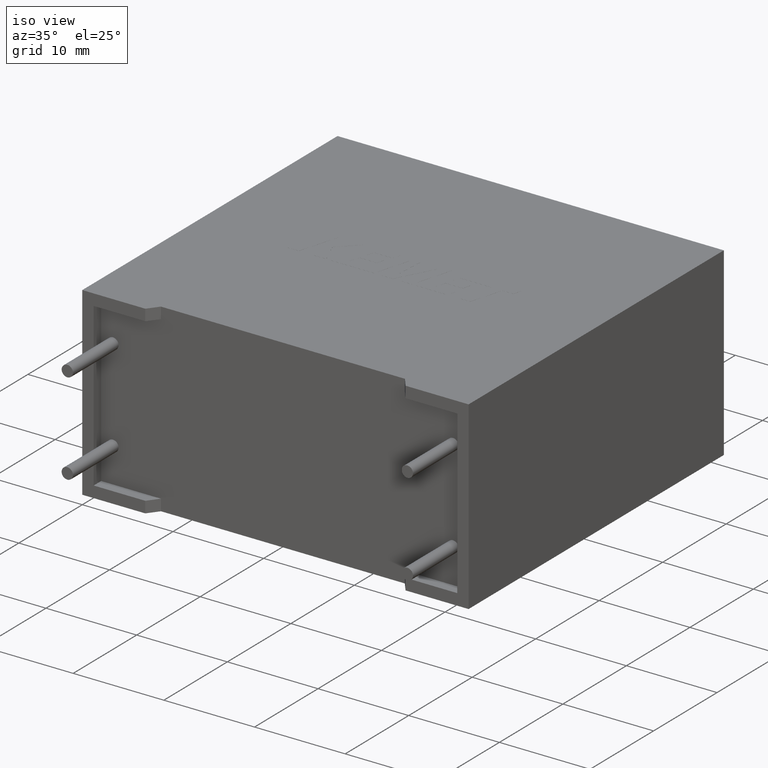
[diagram: clean part render]
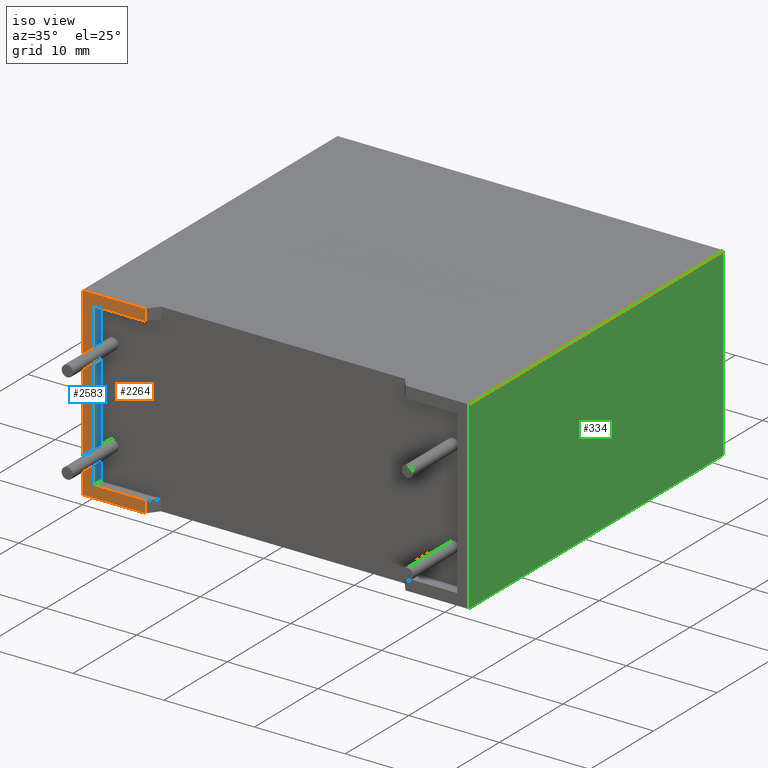
[diagram: same view with three faces highlighted in distinct colors, each labeled with its STEP entity id]
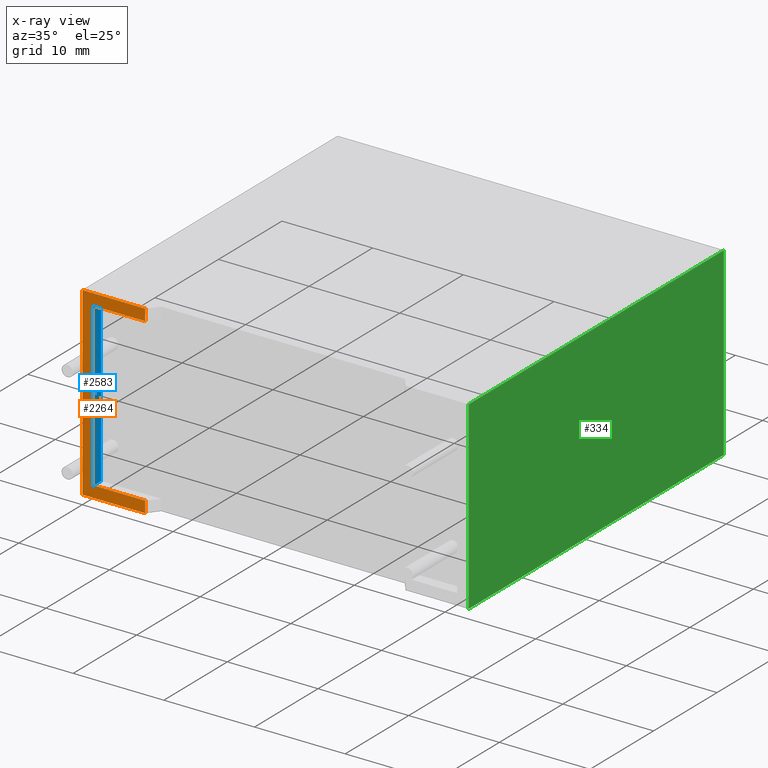
[diagram: x-ray of the same camera — body ghosted, the three highlighted faces saturated]
A machine part, iso view with three faces highlighted in distinct colors.
The next image is the same camera in x-ray (body ghosted, the three faces saturated) — at least one of them is partly hidden behind the body in this view.
Their STEP definitions:

[orange] entity #2264 — the highlighted planar face has unit normal (0, 1, 0).
#33 = EDGE_CURVE ( 'NONE', #2393, #2819, #1967, .T. ) ;
#191 = CARTESIAN_POINT ( 'NONE',  ( 0.0000000000000000000, 0.0000000000000000000, 0.0000000000000000000 ) ) ;
#293 = ORIENTED_EDGE ( 'NONE', *, *, #483, .F. ) ;
#335 = CARTESIAN_POINT ( 'NONE',  ( 0.0000000000000000000, 0.0000000000000000000, 0.0000000000000000000 ) ) ;
#458 = DIRECTION ( 'NONE',  ( -0.0000000000000000000, -0.0000000000000000000, 1.000000000000000000 ) ) ;
#483 = EDGE_CURVE ( 'NONE', #1840, #607, #1961, .T. ) ;
#500 = VERTEX_POINT ( 'NONE', #3143 ) ;
#607 = VERTEX_POINT ( 'NONE', #754 ) ;
#615 = VECTOR ( 'NONE', #458, 1000.000000000000000 ) ;
#654 = DIRECTION ( 'NONE',  ( 1.000000000000000000, 0.0000000000000000000, 0.0000000000000000000 ) ) ;
#663 = AXIS2_PLACEMENT_3D ( 'NONE', #816, #1818, #3021 ) ;
#684 = ORIENTED_EDGE ( 'NONE', *, *, #1293, .F. ) ;
#687 = ORIENTED_EDGE ( 'NONE', *, *, #2999, .T. ) ;
#754 = CARTESIAN_POINT ( 'NONE',  ( 6.950000000000000200, 1.702259050814820900E-015, 1.253987999999999900 ) ) ;
#801 = EDGE_CURVE ( 'NONE', #1222, #2671, #1529, .T. ) ;
#816 = CARTESIAN_POINT ( 'NONE',  ( 0.0000000000000000000, 0.0000000000000000000, 20.39999999999999900 ) ) ;
#867 = VECTOR ( 'NONE', #1332, 1000.000000000000000 ) ;
#932 = FACE_OUTER_BOUND ( 'NONE', #1260, .T. ) ;
#999 = EDGE_CURVE ( 'NONE', #2393, #2671, #3028, .T. ) ;
#1112 = VERTEX_POINT ( 'NONE', #1895 ) ;
#1216 = DIRECTION ( 'NONE',  ( 1.000000000000000000, 0.0000000000000000000, 0.0000000000000000000 ) ) ;
#1222 = VERTEX_POINT ( 'NONE', #2597 ) ;
#1227 = ORIENTED_EDGE ( 'NONE', *, *, #999, .F. ) ;
#1250 = CARTESIAN_POINT ( 'NONE',  ( 6.950000000000000200, 1.702259050814820900E-015, 0.0000000000000000000 ) ) ;
#1260 = EDGE_LOOP ( 'NONE', ( #687, #2112, #293, #684, #2968, #2503, #1227, #2776 ) ) ;
#1263 = DIRECTION ( 'NONE',  ( -0.0000000000000000000, -0.0000000000000000000, -1.000000000000000000 ) ) ;
#1264 = CARTESIAN_POINT ( 'NONE',  ( 41.34601200000000200, 0.0000000000000000000, 19.14601199999999500 ) ) ;
#1274 = LINE ( 'NONE', #2399, #615 ) ;
#1291 = VECTOR ( 'NONE', #1263, 1000.000000000000000 ) ;
#1293 = EDGE_CURVE ( 'NONE', #500, #1840, #1825, .T. ) ;
#1330 = PLANE ( 'NONE',  #663 ) ;
#1332 = DIRECTION ( 'NONE',  ( -0.0000000000000000000, -0.0000000000000000000, 1.000000000000000000 ) ) ;
#1444 = CARTESIAN_POINT ( 'NONE',  ( 1.253987999999999900, 0.0000000000000000000, 19.14601199999999500 ) ) ;
#1508 = CARTESIAN_POINT ( 'NONE',  ( 0.0000000000000000000, 0.0000000000000000000, 20.39999999999999900 ) ) ;
#1529 = LINE ( 'NONE', #1250, #867 ) ;
#1585 = VECTOR ( 'NONE', #654, 1000.000000000000000 ) ;
#1675 = CARTESIAN_POINT ( 'NONE',  ( 1.253987999999999900, 0.0000000000000000000, 1.253987999999999900 ) ) ;
#1759 = VECTOR ( 'NONE', #1986, 1000.000000000000000 ) ;
#1818 = DIRECTION ( 'NONE',  ( 0.0000000000000000000, 1.000000000000000000, 0.0000000000000000000 ) ) ;
#1825 = LINE ( 'NONE', #1444, #2731 ) ;
#1832 = CARTESIAN_POINT ( 'NONE',  ( 0.0000000000000000000, 0.0000000000000000000, 20.39999999999999900 ) ) ;
#1840 = VERTEX_POINT ( 'NONE', #1675 ) ;
#1895 = CARTESIAN_POINT ( 'NONE',  ( 6.950000000000000200, 1.702259050814820900E-015, 0.0000000000000000000 ) ) ;
#1950 = CARTESIAN_POINT ( 'NONE',  ( 6.950000000000000200, 1.702259050814820900E-015, 20.39999999999999900 ) ) ;
#1961 = LINE ( 'NONE', #2882, #3031 ) ;
#1967 = LINE ( 'NONE', #1508, #1291 ) ;
#1986 = DIRECTION ( 'NONE',  ( -1.000000000000000000, 0.0000000000000000000, 0.0000000000000000000 ) ) ;
#2059 = LINE ( 'NONE', #191, #1585 ) ;
#2112 = ORIENTED_EDGE ( 'NONE', *, *, #2508, .T. ) ;
#2164 = DIRECTION ( 'NONE',  ( 0.0000000000000000000, 0.0000000000000000000, -1.000000000000000000 ) ) ;
#2264 = ADVANCED_FACE ( 'NONE', ( #932 ), #1330, .F. ) ;
#2300 = VECTOR ( 'NONE', #2579, 1000.000000000000000 ) ;
#2393 = VERTEX_POINT ( 'NONE', #2552 ) ;
#2399 = CARTESIAN_POINT ( 'NONE',  ( 6.950000000000000200, 1.702259050814820900E-015, 0.0000000000000000000 ) ) ;
#2503 = ORIENTED_EDGE ( 'NONE', *, *, #801, .T. ) ;
#2508 = EDGE_CURVE ( 'NONE', #1112, #607, #1274, .T. ) ;
#2552 = CARTESIAN_POINT ( 'NONE',  ( 0.0000000000000000000, 0.0000000000000000000, 20.39999999999999900 ) ) ;
#2579 = DIRECTION ( 'NONE',  ( 1.000000000000000000, 0.0000000000000000000, 0.0000000000000000000 ) ) ;
#2597 = CARTESIAN_POINT ( 'NONE',  ( 6.950000000000000200, 1.702259050814820900E-015, 19.14601199999999500 ) ) ;
#2671 = VERTEX_POINT ( 'NONE', #1950 ) ;
#2689 = EDGE_CURVE ( 'NONE', #1222, #500, #3055, .T. ) ;
#2731 = VECTOR ( 'NONE', #2164, 1000.000000000000000 ) ;
#2776 = ORIENTED_EDGE ( 'NONE', *, *, #33, .T. ) ;
#2819 = VERTEX_POINT ( 'NONE', #335 ) ;
#2882 = CARTESIAN_POINT ( 'NONE',  ( 1.253987999999999900, 0.0000000000000000000, 1.253987999999999900 ) ) ;
#2968 = ORIENTED_EDGE ( 'NONE', *, *, #2689, .F. ) ;
#2999 = EDGE_CURVE ( 'NONE', #2819, #1112, #2059, .T. ) ;
#3021 = DIRECTION ( 'NONE',  ( 0.0000000000000000000, -0.0000000000000000000, 1.000000000000000000 ) ) ;
#3028 = LINE ( 'NONE', #1832, #2300 ) ;
#3031 = VECTOR ( 'NONE', #1216, 1000.000000000000000 ) ;
#3055 = LINE ( 'NONE', #1264, #1759 ) ;
#3143 = CARTESIAN_POINT ( 'NONE',  ( 1.253987999999999900, 0.0000000000000000000, 19.14601199999999500 ) ) ;

[blue] entity #2583 — the highlighted planar face has unit normal (-1, 0, 0).
#29 = CARTESIAN_POINT ( 'NONE',  ( 1.253987999999999900, 1.181880000000000000, 19.14601199999999500 ) ) ;
#262 = CARTESIAN_POINT ( 'NONE',  ( 1.253987999999999900, 1.181880000000000000, 19.14601199999999500 ) ) ;
#423 = LINE ( 'NONE', #819, #2576 ) ;
#479 = DIRECTION ( 'NONE',  ( -1.000000000000000000, 0.0000000000000000000, 0.0000000000000000000 ) ) ;
#500 = VERTEX_POINT ( 'NONE', #3143 ) ;
#787 = EDGE_CURVE ( 'NONE', #2974, #500, #423, .T. ) ;
#819 = CARTESIAN_POINT ( 'NONE',  ( 1.253987999999999900, 1.181880000000000000, 19.14601199999999500 ) ) ;
#983 = EDGE_CURVE ( 'NONE', #2348, #1840, #2793, .T. ) ;
#1065 = ORIENTED_EDGE ( 'NONE', *, *, #983, .F. ) ;
#1293 = EDGE_CURVE ( 'NONE', #500, #1840, #1825, .T. ) ;
#1356 = CARTESIAN_POINT ( 'NONE',  ( 1.253987999999999900, 1.181880000000000000, 1.253987999999999900 ) ) ;
#1444 = CARTESIAN_POINT ( 'NONE',  ( 1.253987999999999900, 0.0000000000000000000, 19.14601199999999500 ) ) ;
#1467 = EDGE_CURVE ( 'NONE', #2974, #2348, #1998, .T. ) ;
#1615 = ORIENTED_EDGE ( 'NONE', *, *, #787, .T. ) ;
#1633 = CARTESIAN_POINT ( 'NONE',  ( 1.253987999999999900, 1.181880000000000000, 19.14601199999999500 ) ) ;
#1675 = CARTESIAN_POINT ( 'NONE',  ( 1.253987999999999900, 0.0000000000000000000, 1.253987999999999900 ) ) ;
#1716 = PLANE ( 'NONE',  #2347 ) ;
#1825 = LINE ( 'NONE', #1444, #2731 ) ;
#1840 = VERTEX_POINT ( 'NONE', #1675 ) ;
#1921 = VECTOR ( 'NONE', #2916, 1000.000000000000000 ) ;
#1998 = LINE ( 'NONE', #262, #1921 ) ;
#2083 = CARTESIAN_POINT ( 'NONE',  ( 1.253987999999999900, 1.181880000000000000, 1.253987999999999900 ) ) ;
#2164 = DIRECTION ( 'NONE',  ( 0.0000000000000000000, 0.0000000000000000000, -1.000000000000000000 ) ) ;
#2187 = DIRECTION ( 'NONE',  ( 0.0000000000000000000, 0.0000000000000000000, 1.000000000000000000 ) ) ;
#2222 = EDGE_LOOP ( 'NONE', ( #3118, #1065, #3040, #1615 ) ) ;
#2252 = FACE_OUTER_BOUND ( 'NONE', #2222, .T. ) ;
#2347 = AXIS2_PLACEMENT_3D ( 'NONE', #29, #479, #2187 ) ;
#2348 = VERTEX_POINT ( 'NONE', #2083 ) ;
#2451 = VECTOR ( 'NONE', #2785, 1000.000000000000000 ) ;
#2509 = DIRECTION ( 'NONE',  ( -0.0000000000000000000, -1.000000000000000000, -0.0000000000000000000 ) ) ;
#2576 = VECTOR ( 'NONE', #2509, 1000.000000000000000 ) ;
#2583 = ADVANCED_FACE ( 'NONE', ( #2252 ), #1716, .F. ) ;
#2731 = VECTOR ( 'NONE', #2164, 1000.000000000000000 ) ;
#2785 = DIRECTION ( 'NONE',  ( -0.0000000000000000000, -1.000000000000000000, -0.0000000000000000000 ) ) ;
#2793 = LINE ( 'NONE', #1356, #2451 ) ;
#2916 = DIRECTION ( 'NONE',  ( 0.0000000000000000000, 0.0000000000000000000, -1.000000000000000000 ) ) ;
#2974 = VERTEX_POINT ( 'NONE', #1633 ) ;
#3040 = ORIENTED_EDGE ( 'NONE', *, *, #1467, .F. ) ;
#3118 = ORIENTED_EDGE ( 'NONE', *, *, #1293, .T. ) ;
#3143 = CARTESIAN_POINT ( 'NONE',  ( 1.253987999999999900, 0.0000000000000000000, 19.14601199999999500 ) ) ;

[green] entity #334 — the highlighted planar face has unit normal (-1, 0, 0).
#30 = VECTOR ( 'NONE', #146, 1000.000000000000000 ) ;
#118 = VERTEX_POINT ( 'NONE', #2262 ) ;
#146 = DIRECTION ( 'NONE',  ( -0.0000000000000000000, -0.0000000000000000000, -1.000000000000000000 ) ) ;
#214 = CARTESIAN_POINT ( 'NONE',  ( 42.60000000000000100, 0.0000000000000000000, 20.39999999999999900 ) ) ;
#317 = VERTEX_POINT ( 'NONE', #364 ) ;
#334 = ADVANCED_FACE ( 'NONE', ( #2166 ), #2094, .F. ) ;
#364 = CARTESIAN_POINT ( 'NONE',  ( 42.60000000000000100, 40.20000000000000300, 0.0000000000000000000 ) ) ;
#553 = CARTESIAN_POINT ( 'NONE',  ( 42.60000000000000100, 0.0000000000000000000, 20.39999999999999900 ) ) ;
#623 = VECTOR ( 'NONE', #1277, 1000.000000000000000 ) ;
#631 = DIRECTION ( 'NONE',  ( -1.000000000000000000, 0.0000000000000000000, 0.0000000000000000000 ) ) ;
#718 = EDGE_CURVE ( 'NONE', #1382, #2586, #2910, .T. ) ;
#794 = CARTESIAN_POINT ( 'NONE',  ( 42.60000000000000100, 0.0000000000000000000, 20.39999999999999900 ) ) ;
#888 = AXIS2_PLACEMENT_3D ( 'NONE', #1647, #631, #1400 ) ;
#911 = DIRECTION ( 'NONE',  ( 0.0000000000000000000, 1.000000000000000000, 0.0000000000000000000 ) ) ;
#1039 = ORIENTED_EDGE ( 'NONE', *, *, #1131, .T. ) ;
#1131 = EDGE_CURVE ( 'NONE', #2586, #317, #1402, .T. ) ;
#1277 = DIRECTION ( 'NONE',  ( 0.0000000000000000000, 1.000000000000000000, 0.0000000000000000000 ) ) ;
#1380 = ORIENTED_EDGE ( 'NONE', *, *, #718, .T. ) ;
#1382 = VERTEX_POINT ( 'NONE', #214 ) ;
#1400 = DIRECTION ( 'NONE',  ( 0.0000000000000000000, 0.0000000000000000000, 1.000000000000000000 ) ) ;
#1402 = LINE ( 'NONE', #2631, #2713 ) ;
#1542 = ORIENTED_EDGE ( 'NONE', *, *, #2065, .F. ) ;
#1647 = CARTESIAN_POINT ( 'NONE',  ( 42.60000000000000100, 0.0000000000000000000, 20.39999999999999900 ) ) ;
#1771 = DIRECTION ( 'NONE',  ( -0.0000000000000000000, -0.0000000000000000000, -1.000000000000000000 ) ) ;
#1870 = LINE ( 'NONE', #2491, #2740 ) ;
#2065 = EDGE_CURVE ( 'NONE', #1382, #118, #2710, .T. ) ;
#2094 = PLANE ( 'NONE',  #888 ) ;
#2166 = FACE_OUTER_BOUND ( 'NONE', #2557, .T. ) ;
#2262 = CARTESIAN_POINT ( 'NONE',  ( 42.60000000000000100, 40.20000000000000300, 20.39999999999999900 ) ) ;
#2400 = ORIENTED_EDGE ( 'NONE', *, *, #2792, .F. ) ;
#2439 = CARTESIAN_POINT ( 'NONE',  ( 42.60000000000000100, 0.0000000000000000000, 0.0000000000000000000 ) ) ;
#2491 = CARTESIAN_POINT ( 'NONE',  ( 42.60000000000000100, 40.20000000000000300, 20.39999999999999900 ) ) ;
#2557 = EDGE_LOOP ( 'NONE', ( #1039, #2400, #1542, #1380 ) ) ;
#2586 = VERTEX_POINT ( 'NONE', #2439 ) ;
#2631 = CARTESIAN_POINT ( 'NONE',  ( 42.60000000000000100, 0.0000000000000000000, 0.0000000000000000000 ) ) ;
#2710 = LINE ( 'NONE', #794, #623 ) ;
#2713 = VECTOR ( 'NONE', #911, 1000.000000000000000 ) ;
#2740 = VECTOR ( 'NONE', #1771, 1000.000000000000000 ) ;
#2792 = EDGE_CURVE ( 'NONE', #118, #317, #1870, .T. ) ;
#2910 = LINE ( 'NONE', #553, #30 ) ;